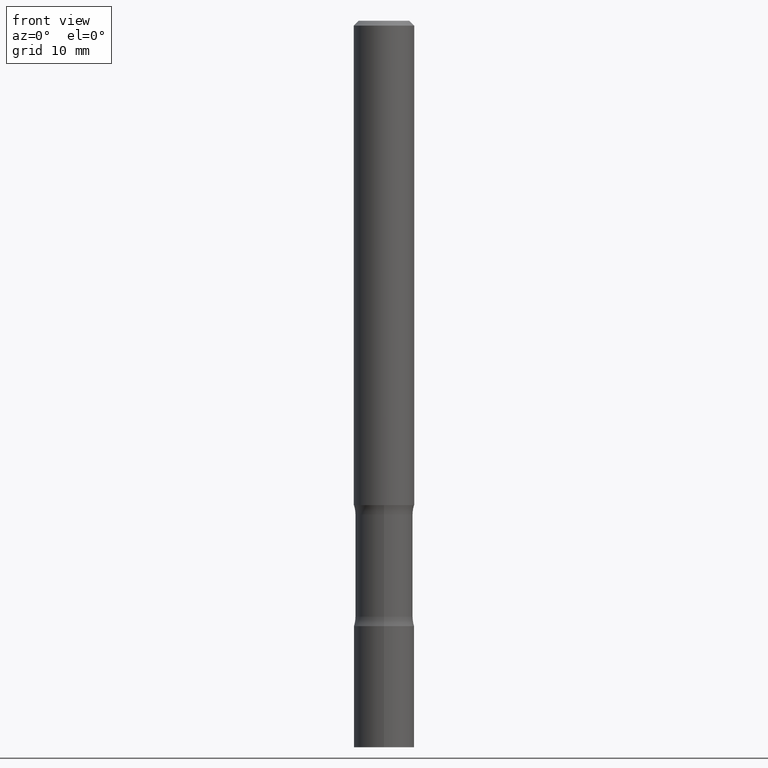
[diagram: clean part render]
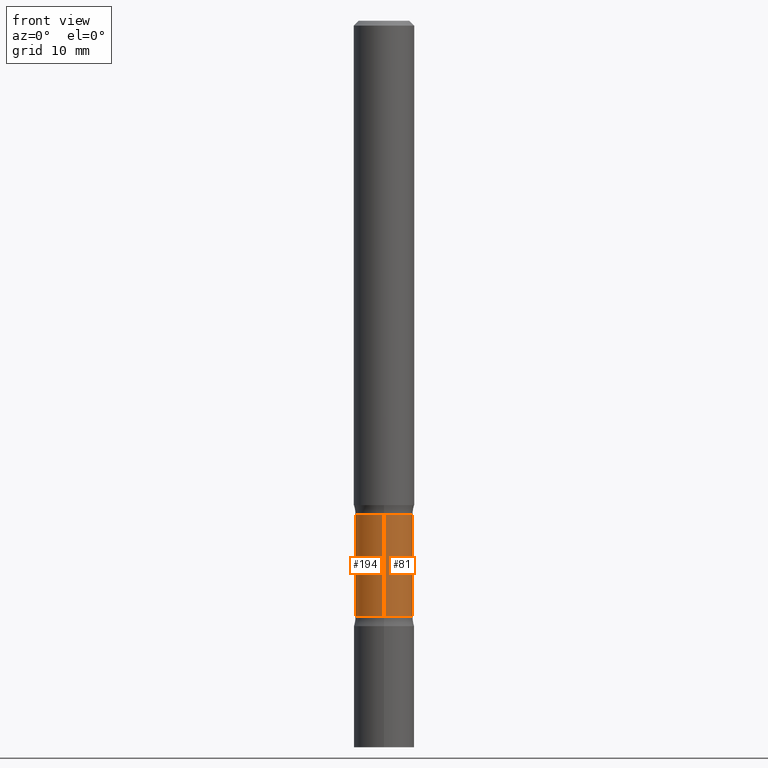
[diagram: same view with one multi-face feature highlighted, each face labeled with its STEP entity id]
A machine part, front view. The highlighted faces form ONE feature: a constant-radius fillet chain: 2 tangent blend faces with common blend radius 3.0163 mm. The faces share edges in the B-rep.
Their STEP definitions:
[1] entity #194 (Cylinder):
#5 = CARTESIAN_POINT ( 'NONE',  ( 8.292268179753181276E-16, 0.1187499999999896139, -3.000000000000000444 ) ) ;
#24 = EDGE_CURVE ( 'NONE', #26, #112, #362, .T. ) ;
#26 = VERTEX_POINT ( 'NONE', #282 ) ;
#40 = CARTESIAN_POINT ( 'NONE',  ( 8.292268179753048156E-16, 0.1187499999999914874, -2.460968762510010510 ) ) ;
#46 = DIRECTION ( 'NONE',  ( 2.537572289003869812E-29, -3.359583909242031420E-15, -1.000000000000000000 ) ) ;
#59 = CARTESIAN_POINT ( 'NONE',  ( 7.383417339802561736E-29, -1.040712170160804313E-14, -2.999999999999999556 ) ) ;
#68 = EDGE_CURVE ( 'NONE', #237, #315, #429, .T. ) ;
#70 = CIRCLE ( 'NONE', #136, 0.1187499999999999944 ) ;
#86 = DIRECTION ( 'NONE',  ( 6.982962677686265133E-15, 1.000000000000000000, -4.601007147224020477E-15 ) ) ;
#112 = VERTEX_POINT ( 'NONE', #40 ) ;
#136 = AXIS2_PLACEMENT_3D ( 'NONE', #258, #340, #303 ) ;
#155 = AXIS2_PLACEMENT_3D ( 'NONE', #59, #295, #86 ) ;
#161 = CARTESIAN_POINT ( 'NONE',  ( -8.146841372352955554E-16, -0.1187500000000104444, -2.999999999999999112 ) ) ;
#162 = VECTOR ( 'NONE', #238, 39.37007874015748143 ) ;
#163 = ORIENTED_EDGE ( 'NONE', *, *, #412, .F. ) ;
#185 = CARTESIAN_POINT ( 'NONE',  ( 6.015586608640499097E-29, -8.596201029557853074E-15, -2.460968762510010066 ) ) ;
#187 = ORIENTED_EDGE ( 'NONE', *, *, #68, .F. ) ;
#194 = ADVANCED_FACE ( 'NONE', ( #259 ), #324, .T. ) ;
#195 = DIRECTION ( 'NONE',  ( 2.537572289003869812E-29, -3.359583909242031026E-15, -1.000000000000000000 ) ) ;
#219 = CARTESIAN_POINT ( 'NONE',  ( -8.361231934783565195E-16, -0.1187500000000071693, -2.039031237489990378 ) ) ;
#229 = CARTESIAN_POINT ( 'NONE',  ( -8.361231934783450810E-16, -0.1187500000000086681, -2.460968762510009622 ) ) ;
#237 = VERTEX_POINT ( 'NONE', #219 ) ;
#238 = DIRECTION ( 'NONE',  ( 2.537572289003869812E-29, -3.359583909242031420E-15, -1.000000000000000000 ) ) ;
#255 = ORIENTED_EDGE ( 'NONE', *, *, #298, .T. ) ;
#258 = CARTESIAN_POINT ( 'NONE',  ( 4.944889637458821058E-29, -7.178666509795189020E-15, -2.039031237489990378 ) ) ;
#259 = FACE_OUTER_BOUND ( 'NONE', #347, .T. ) ;
#282 = CARTESIAN_POINT ( 'NONE',  ( 8.292268179752934757E-16, 0.1187499999999928196, -2.039031237489990822 ) ) ;
#288 = CIRCLE ( 'NONE', #351, 0.1187500000000000777 ) ;
#295 = DIRECTION ( 'NONE',  ( 2.537572289003869812E-29, -3.359583909242031026E-15, -1.000000000000000000 ) ) ;
#298 = EDGE_CURVE ( 'NONE', #237, #26, #70, .T. ) ;
#299 = DIRECTION ( 'NONE',  ( 6.982962677686265922E-15, 1.000000000000000000, -4.601007147224018900E-15 ) ) ;
#303 = DIRECTION ( 'NONE',  ( 6.982962677686265133E-15, 1.000000000000000000, -2.300503573612011422E-15 ) ) ;
#315 = VERTEX_POINT ( 'NONE', #229 ) ;
#324 = CYLINDRICAL_SURFACE ( 'NONE', #155, 0.1187500000000000361 ) ;
#340 = DIRECTION ( 'NONE',  ( 2.537572289003869812E-29, -3.359583909242031026E-15, -1.000000000000000000 ) ) ;
#347 = EDGE_LOOP ( 'NONE', ( #187, #255, #376, #163 ) ) ;
#351 = AXIS2_PLACEMENT_3D ( 'NONE', #185, #195, #299 ) ;
#362 = LINE ( 'NONE', #5, #447 ) ;
#376 = ORIENTED_EDGE ( 'NONE', *, *, #24, .T. ) ;
#412 = EDGE_CURVE ( 'NONE', #315, #112, #288, .T. ) ;
#429 = LINE ( 'NONE', #161, #162 ) ;
#447 = VECTOR ( 'NONE', #46, 39.37007874015748143 ) ;
[2] entity #81 (Cylinder):
#5 = CARTESIAN_POINT ( 'NONE',  ( 8.292268179753181276E-16, 0.1187499999999896139, -3.000000000000000444 ) ) ;
#24 = EDGE_CURVE ( 'NONE', #26, #112, #362, .T. ) ;
#26 = VERTEX_POINT ( 'NONE', #282 ) ;
#29 = ORIENTED_EDGE ( 'NONE', *, *, #158, .F. ) ;
#38 = DIRECTION ( 'NONE',  ( 2.537572289003869812E-29, -3.359583909242031026E-15, -1.000000000000000000 ) ) ;
#40 = CARTESIAN_POINT ( 'NONE',  ( 8.292268179753048156E-16, 0.1187499999999914874, -2.460968762510010510 ) ) ;
#41 = DIRECTION ( 'NONE',  ( 6.982962677686265133E-15, 1.000000000000000000, -4.601007147224020477E-15 ) ) ;
#46 = DIRECTION ( 'NONE',  ( 2.537572289003869812E-29, -3.359583909242031420E-15, -1.000000000000000000 ) ) ;
#68 = EDGE_CURVE ( 'NONE', #237, #315, #429, .T. ) ;
#75 = CYLINDRICAL_SURFACE ( 'NONE', #104, 0.1187500000000000361 ) ;
#81 = ADVANCED_FACE ( 'NONE', ( #119 ), #75, .T. ) ;
#104 = AXIS2_PLACEMENT_3D ( 'NONE', #387, #38, #41 ) ;
#105 = DIRECTION ( 'NONE',  ( 6.982962677686265133E-15, 1.000000000000000000, -2.300503573612011422E-15 ) ) ;
#111 = EDGE_LOOP ( 'NONE', ( #377, #426, #29, #233 ) ) ;
#112 = VERTEX_POINT ( 'NONE', #40 ) ;
#119 = FACE_OUTER_BOUND ( 'NONE', #111, .T. ) ;
#158 = EDGE_CURVE ( 'NONE', #112, #315, #457, .T. ) ;
#161 = CARTESIAN_POINT ( 'NONE',  ( -8.146841372352955554E-16, -0.1187500000000104444, -2.999999999999999112 ) ) ;
#162 = VECTOR ( 'NONE', #238, 39.37007874015748143 ) ;
#213 = DIRECTION ( 'NONE',  ( 2.537572289003869812E-29, -3.359583909242031026E-15, -1.000000000000000000 ) ) ;
#215 = CARTESIAN_POINT ( 'NONE',  ( 6.015586608640499097E-29, -8.596201029557853074E-15, -2.460968762510010066 ) ) ;
#219 = CARTESIAN_POINT ( 'NONE',  ( -8.361231934783565195E-16, -0.1187500000000071693, -2.039031237489990378 ) ) ;
#229 = CARTESIAN_POINT ( 'NONE',  ( -8.361231934783450810E-16, -0.1187500000000086681, -2.460968762510009622 ) ) ;
#233 = ORIENTED_EDGE ( 'NONE', *, *, #24, .F. ) ;
#237 = VERTEX_POINT ( 'NONE', #219 ) ;
#238 = DIRECTION ( 'NONE',  ( 2.537572289003869812E-29, -3.359583909242031420E-15, -1.000000000000000000 ) ) ;
#239 = AXIS2_PLACEMENT_3D ( 'NONE', #215, #213, #413 ) ;
#282 = CARTESIAN_POINT ( 'NONE',  ( 8.292268179752934757E-16, 0.1187499999999928196, -2.039031237489990822 ) ) ;
#315 = VERTEX_POINT ( 'NONE', #229 ) ;
#328 = EDGE_CURVE ( 'NONE', #26, #237, #506, .T. ) ;
#362 = LINE ( 'NONE', #5, #447 ) ;
#377 = ORIENTED_EDGE ( 'NONE', *, *, #328, .T. ) ;
#387 = CARTESIAN_POINT ( 'NONE',  ( 7.383417339802561736E-29, -1.040712170160804313E-14, -2.999999999999999556 ) ) ;
#392 = AXIS2_PLACEMENT_3D ( 'NONE', #464, #422, #105 ) ;
#413 = DIRECTION ( 'NONE',  ( 6.982962677686265922E-15, 1.000000000000000000, -4.601007147224018900E-15 ) ) ;
#422 = DIRECTION ( 'NONE',  ( 2.537572289003869812E-29, -3.359583909242031026E-15, -1.000000000000000000 ) ) ;
#426 = ORIENTED_EDGE ( 'NONE', *, *, #68, .T. ) ;
#429 = LINE ( 'NONE', #161, #162 ) ;
#447 = VECTOR ( 'NONE', #46, 39.37007874015748143 ) ;
#457 = CIRCLE ( 'NONE', #239, 0.1187500000000000777 ) ;
#464 = CARTESIAN_POINT ( 'NONE',  ( 4.944889637458821058E-29, -7.178666509795189020E-15, -2.039031237489990378 ) ) ;
#506 = CIRCLE ( 'NONE', #392, 0.1187499999999999944 ) ;